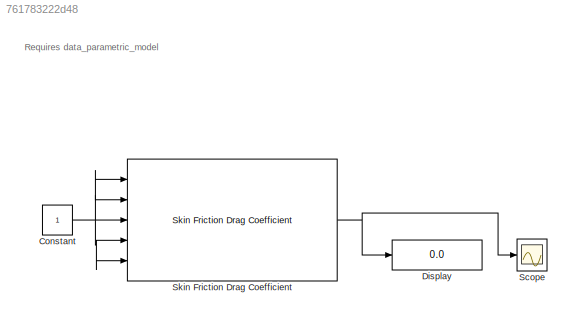
MODEL slx_761783222d48
KIND model
BLOCK [Constant] Constant
BLOCK [Display] Display
  Decimation = 1
  Ports = [1]
BLOCK [Scope] Scope
  DataFormat = StructureWithTime
  Floating = off
  NumInputPorts = 1
  Ports = [1]
  SampleTime = 0
  ShowLegends = off
BLOCK [Reference] Skin Friction Drag Coefficient  REF=rocket_drag_library/Skin Friction Drag Coefficient  (lib defined in slx_51275aa4cfd2)
  Ports = [5, 1]
  SourceBlock = rocket_drag_library/Skin Friction Drag Coefficient
  SourceType = SubSystem
ANNOTATION (root): Requires data_parametric_model
NET Constant:1 -> Skin Friction Drag Coefficient:1, Skin Friction Drag Coefficient:2, Skin Friction Drag Coefficient:3, Skin Friction Drag Coefficient:4, Skin Friction Drag Coefficient:5
NET Skin Friction Drag Coefficient:1 -> Display:1, Scope:1
note: NET lines group one-source signal fan-out (src -> all destinations, sorted); 1:1 wires keep LINE
